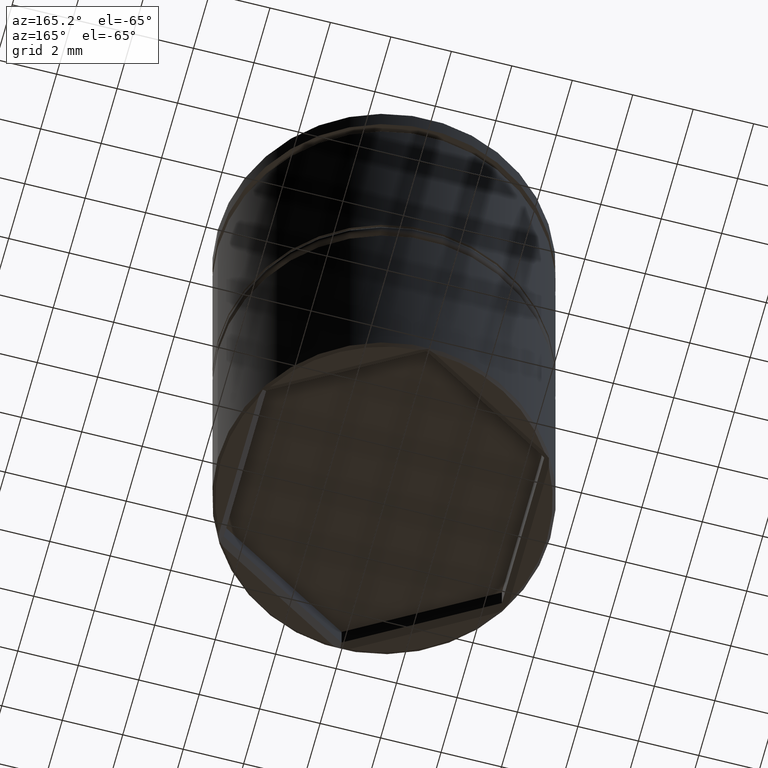
[diagram: clean part render]
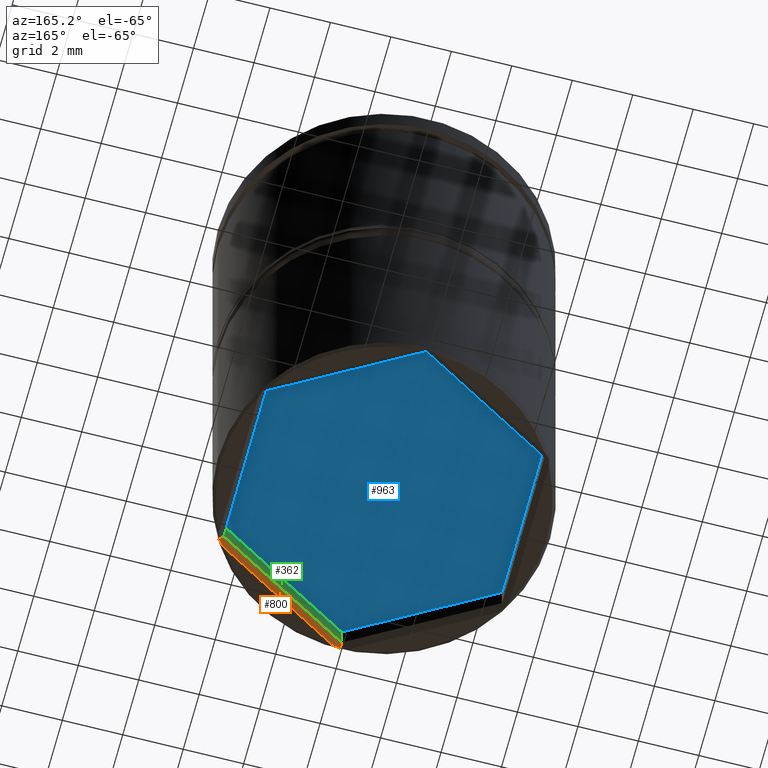
[diagram: same view with three faces highlighted in distinct colors, each labeled with its STEP entity id]
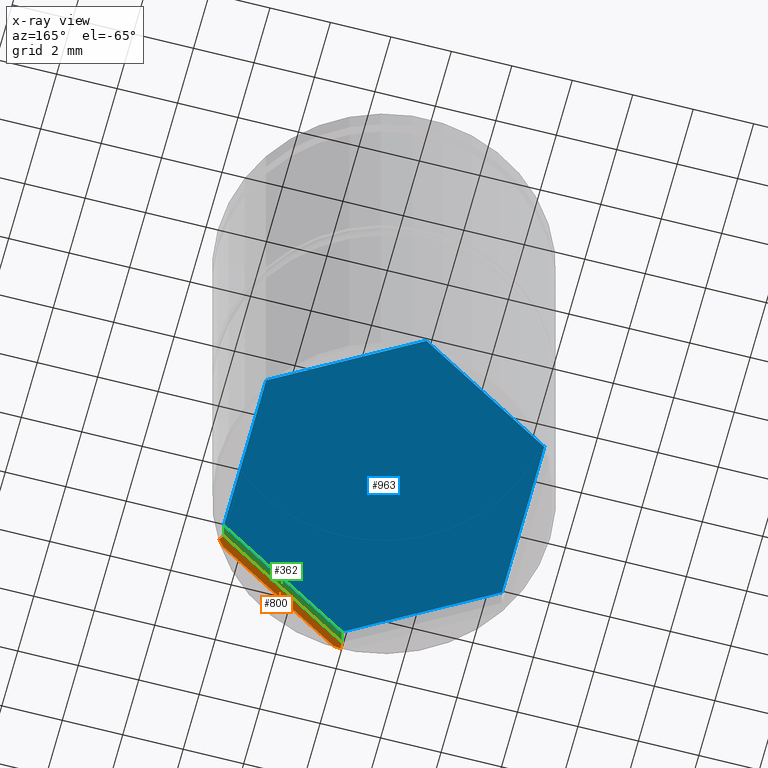
[diagram: x-ray of the same camera — body ghosted, the three highlighted faces saturated]
A machine part, auxiliary view with three faces highlighted in distinct colors.
The next image is the same camera in x-ray (body ghosted, the three faces saturated) — at least one of them is partly hidden behind the body in this view.
Their STEP definitions:

[orange] entity #800 — the highlighted planar face has unit normal (-0.3536, 0.6124, -0.7071).
#8 = ORIENTED_EDGE ( 'NONE', *, *, #845, .F. ) ;
#11 = DIRECTION ( 'NONE',  ( 0.8660254037844385966, 0.4999999999999999445, 0.000000000000000000 ) ) ;
#32 = CARTESIAN_POINT ( 'NONE',  ( 4.670951587135925287, -2.795966650066627590, -17.45685394065973739 ) ) ;
#44 = VERTEX_POINT ( 'NONE', #496 ) ;
#59 = VECTOR ( 'NONE', #1199, 1000.000000000000114 ) ;
#77 = DIRECTION ( 'NONE',  ( 1.792096372221770271E-15, 0.7559289460184548393, 0.6546536707079767536 ) ) ;
#91 = LINE ( 'NONE', #1275, #1111 ) ;
#99 = EDGE_CURVE ( 'NONE', #1200, #683, #626, .T. ) ;
#118 = CARTESIAN_POINT ( 'NONE',  ( 4.600000000000003197, -2.655811238272280050, -17.30000000000000426 ) ) ;
#124 = CARTESIAN_POINT ( 'NONE',  ( 4.542428528562859391, -2.919990250480007266, -17.50000000000000000 ) ) ;
#132 = CARTESIAN_POINT ( 'NONE',  ( 3.285714285714289584, -1.897008027337344638, -15.98571428571429109 ) ) ;
#231 = ORIENTED_EDGE ( 'NONE', *, *, #784, .F. ) ;
#235 = VERTEX_POINT ( 'NONE', #124 ) ;
#261 = CARTESIAN_POINT ( 'NONE',  ( 4.733836474405098471, -2.733081762797452630, -17.43383647440510131 ) ) ;
#298 = B_SPLINE_CURVE_WITH_KNOTS ( 'NONE', 3,
 ( #994, #788, #32, #261 ),
 .UNSPECIFIED., .F., .F.,
 ( 4, 4 ),
 ( 0.000000000000000000, 0.0002755891808806588332 ),
 .UNSPECIFIED. ) ;
#367 = ORIENTED_EDGE ( 'NONE', *, *, #791, .T. ) ;
#393 = CARTESIAN_POINT ( 'NONE',  ( -8.646952822150503169E-16, -5.311622476544560989, -17.30000000000000426 ) ) ;
#446 = DIRECTION ( 'NONE',  ( 0.6546536707079771977, -0.3779644730092269755, -0.6546536707079770867 ) ) ;
#459 = DIRECTION ( 'NONE',  ( -0.3535533905932737864, 0.6123724356957945814, -0.7071067811865474617 ) ) ;
#466 = CARTESIAN_POINT ( 'NONE',  ( 4.600000000000003197, -2.655811238272280050, -17.30000000000000426 ) ) ;
#473 = ORIENTED_EDGE ( 'NONE', *, *, #554, .F. ) ;
#496 = CARTESIAN_POINT ( 'NONE',  ( 4.733836474405098471, -2.733081762797452630, -17.43383647440510131 ) ) ;
#515 = CARTESIAN_POINT ( 'NONE',  ( 4.700000000000002842, -2.829016319029166393, -17.50000000000000000 ) ) ;
#554 = EDGE_CURVE ( 'NONE', #590, #235, #811, .T. ) ;
#570 = LINE ( 'NONE', #132, #749 ) ;
#590 = VERTEX_POINT ( 'NONE', #625 ) ;
#625 = CARTESIAN_POINT ( 'NONE',  ( 0.2575714714371426517, -5.393853625850607791, -17.50000000000000000 ) ) ;
#626 = LINE ( 'NONE', #1080, #59 ) ;
#651 = EDGE_CURVE ( 'NONE', #974, #683, #91, .T. ) ;
#662 = FACE_OUTER_BOUND ( 'NONE', #1233, .T. ) ;
#683 = VERTEX_POINT ( 'NONE', #393 ) ;
#749 = VECTOR ( 'NONE', #446, 1000.000000000000114 ) ;
#784 = EDGE_CURVE ( 'NONE', #974, #590, #1366, .T. ) ;
#788 = CARTESIAN_POINT ( 'NONE',  ( 4.607143312884230291, -2.858292033175949598, -17.47892516860715872 ) ) ;
#791 = EDGE_CURVE ( 'NONE', #1200, #44, #570, .T. ) ;
#796 = AXIS2_PLACEMENT_3D ( 'NONE', #118, #459, #11 ) ;
#800 = ADVANCED_FACE ( 'NONE', ( #662 ), #1308, .T. ) ;
#811 = LINE ( 'NONE', #515, #1067 ) ;
#818 = ORIENTED_EDGE ( 'NONE', *, *, #651, .T. ) ;
#845 = EDGE_CURVE ( 'NONE', #235, #44, #298, .T. ) ;
#912 = ORIENTED_EDGE ( 'NONE', *, *, #99, .F. ) ;
#940 = DIRECTION ( 'NONE',  ( 0.8660254037844385966, 0.4999999999999999445, 0.000000000000000000 ) ) ;
#974 = VERTEX_POINT ( 'NONE', #1024 ) ;
#994 = CARTESIAN_POINT ( 'NONE',  ( 4.542428528562859391, -2.919990250480007266, -17.50000000000000000 ) ) ;
#1024 = CARTESIAN_POINT ( 'NONE',  ( -1.204079547557657958E-15, -5.466163525594906147, -17.43383647440510131 ) ) ;
#1067 = VECTOR ( 'NONE', #940, 1000.000000000000114 ) ;
#1079 = CARTESIAN_POINT ( 'NONE',  ( 0.2575714714371426517, -5.393853625850607791, -17.50000000000000000 ) ) ;
#1080 = CARTESIAN_POINT ( 'NONE',  ( -9.334475960612078863E-16, -5.311622476544560989, -17.30000000000000426 ) ) ;
#1111 = VECTOR ( 'NONE', #77, 1000.000000000000114 ) ;
#1198 = CARTESIAN_POINT ( 'NONE',  ( 0.1717818557229302545, -5.419049164421316789, -17.47892516860715872 ) ) ;
#1199 = DIRECTION ( 'NONE',  ( -0.8660254037844385966, -0.4999999999999999445, 0.000000000000000000 ) ) ;
#1200 = VERTEX_POINT ( 'NONE', #466 ) ;
#1222 = CARTESIAN_POINT ( 'NONE',  ( -1.204079547557657958E-15, -5.466163525594906147, -17.43383647440510131 ) ) ;
#1233 = EDGE_LOOP ( 'NONE', ( #8, #473, #231, #818, #912, #367 ) ) ;
#1275 = CARTESIAN_POINT ( 'NONE',  ( -8.646952822150503169E-16, -5.311622476544560989, -17.30000000000000426 ) ) ;
#1308 = PLANE ( 'NONE',  #796 ) ;
#1321 = CARTESIAN_POINT ( 'NONE',  ( 0.08590235352381191125, -5.443146059340267406, -17.45685394065973739 ) ) ;
#1366 = B_SPLINE_CURVE_WITH_KNOTS ( 'NONE', 3,
 ( #1222, #1321, #1198, #1079 ),
 .UNSPECIFIED., .F., .F.,
 ( 4, 4 ),
 ( 1.891262555392043906E-19, 0.0002755891808806599174 ),
 .UNSPECIFIED. ) ;

[blue] entity #963 — the highlighted planar face has unit normal (0, 0, -1).
#2 = LINE ( 'NONE', #964, #820 ) ;
#62 = CARTESIAN_POINT ( 'NONE',  ( 0.000000000000000000, 5.311622476544559213, -16.50000000000000000 ) ) ;
#72 = EDGE_CURVE ( 'NONE', #408, #892, #1252, .T. ) ;
#103 = DIRECTION ( 'NONE',  ( 0.8660254037844385966, -0.4999999999999999445, 0.000000000000000000 ) ) ;
#126 = EDGE_CURVE ( 'NONE', #753, #1094, #767, .T. ) ;
#127 = VERTEX_POINT ( 'NONE', #430 ) ;
#156 = EDGE_CURVE ( 'NONE', #127, #870, #2, .T. ) ;
#171 = VECTOR ( 'NONE', #642, 1000.000000000000227 ) ;
#174 = DIRECTION ( 'NONE',  ( -1.000000000000000000, 0.000000000000000000, -0.000000000000000000 ) ) ;
#207 = EDGE_CURVE ( 'NONE', #892, #127, #319, .T. ) ;
#220 = CARTESIAN_POINT ( 'NONE',  ( -8.646952822150503169E-16, -5.311622476544560989, -16.50000000000000000 ) ) ;
#283 = VECTOR ( 'NONE', #103, 1000.000000000000114 ) ;
#286 = PLANE ( 'NONE',  #1069 ) ;
#319 = LINE ( 'NONE', #737, #283 ) ;
#358 = ORIENTED_EDGE ( 'NONE', *, *, #126, .T. ) ;
#400 = DIRECTION ( 'NONE',  ( 0.8660254037844387076, 0.4999999999999998890, 0.000000000000000000 ) ) ;
#408 = VERTEX_POINT ( 'NONE', #1211 ) ;
#430 = CARTESIAN_POINT ( 'NONE',  ( 4.600000000000003197, 2.655811238272278718, -16.50000000000000000 ) ) ;
#523 = LINE ( 'NONE', #613, #748 ) ;
#556 = ORIENTED_EDGE ( 'NONE', *, *, #156, .T. ) ;
#608 = EDGE_CURVE ( 'NONE', #870, #753, #523, .T. ) ;
#613 = CARTESIAN_POINT ( 'NONE',  ( 4.600000000000003197, -2.655811238272280050, -16.50000000000000000 ) ) ;
#642 = DIRECTION ( 'NONE',  ( -0.8660254037844384856, 0.5000000000000002220, 0.000000000000000000 ) ) ;
#661 = ORIENTED_EDGE ( 'NONE', *, *, #608, .T. ) ;
#688 = CARTESIAN_POINT ( 'NONE',  ( 0.000000000000000000, 0.000000000000000000, -16.50000000000000000 ) ) ;
#699 = DIRECTION ( 'NONE',  ( 0.000000000000000000, 0.000000000000000000, -1.000000000000000000 ) ) ;
#726 = EDGE_LOOP ( 'NONE', ( #944, #1337, #556, #661, #358, #1244 ) ) ;
#737 = CARTESIAN_POINT ( 'NONE',  ( 0.000000000000000000, 5.311622476544559213, -16.50000000000000000 ) ) ;
#748 = VECTOR ( 'NONE', #826, 1000.000000000000114 ) ;
#753 = VERTEX_POINT ( 'NONE', #1160 ) ;
#767 = LINE ( 'NONE', #220, #171 ) ;
#799 = VECTOR ( 'NONE', #1154, 1000.000000000000000 ) ;
#820 = VECTOR ( 'NONE', #1184, 1000.000000000000000 ) ;
#826 = DIRECTION ( 'NONE',  ( -0.8660254037844385966, -0.4999999999999999445, 0.000000000000000000 ) ) ;
#829 = CARTESIAN_POINT ( 'NONE',  ( -4.600000000000003197, -2.655811238272279606, -16.50000000000000000 ) ) ;
#870 = VERTEX_POINT ( 'NONE', #1332 ) ;
#892 = VERTEX_POINT ( 'NONE', #62 ) ;
#944 = ORIENTED_EDGE ( 'NONE', *, *, #72, .T. ) ;
#963 = ADVANCED_FACE ( 'NONE', ( #1236 ), #286, .T. ) ;
#964 = CARTESIAN_POINT ( 'NONE',  ( 4.600000000000003197, 2.655811238272278718, -16.50000000000000000 ) ) ;
#1069 = AXIS2_PLACEMENT_3D ( 'NONE', #688, #699, #174 ) ;
#1094 = VERTEX_POINT ( 'NONE', #1162 ) ;
#1120 = EDGE_CURVE ( 'NONE', #1094, #408, #1369, .T. ) ;
#1136 = CARTESIAN_POINT ( 'NONE',  ( -4.600000000000003197, 2.655811238272279606, -16.50000000000000000 ) ) ;
#1154 = DIRECTION ( 'NONE',  ( 0.000000000000000000, 1.000000000000000000, 0.000000000000000000 ) ) ;
#1160 = CARTESIAN_POINT ( 'NONE',  ( -8.646952822150503169E-16, -5.311622476544560989, -16.50000000000000000 ) ) ;
#1162 = CARTESIAN_POINT ( 'NONE',  ( -4.600000000000003197, -2.655811238272279606, -16.50000000000000000 ) ) ;
#1184 = DIRECTION ( 'NONE',  ( 0.000000000000000000, -1.000000000000000000, 0.000000000000000000 ) ) ;
#1211 = CARTESIAN_POINT ( 'NONE',  ( -4.600000000000003197, 2.655811238272279606, -16.50000000000000000 ) ) ;
#1236 = FACE_OUTER_BOUND ( 'NONE', #726, .T. ) ;
#1244 = ORIENTED_EDGE ( 'NONE', *, *, #1120, .T. ) ;
#1252 = LINE ( 'NONE', #1136, #1377 ) ;
#1332 = CARTESIAN_POINT ( 'NONE',  ( 4.600000000000003197, -2.655811238272280050, -16.50000000000000000 ) ) ;
#1337 = ORIENTED_EDGE ( 'NONE', *, *, #207, .T. ) ;
#1369 = LINE ( 'NONE', #829, #799 ) ;
#1377 = VECTOR ( 'NONE', #400, 1000.000000000000114 ) ;

[green] entity #362 — the highlighted planar face has unit normal (0.5, -0.866, 0).
#38 = VECTOR ( 'NONE', #1352, 1000.000000000000000 ) ;
#59 = VECTOR ( 'NONE', #1199, 1000.000000000000114 ) ;
#99 = EDGE_CURVE ( 'NONE', #1200, #683, #626, .T. ) ;
#153 = VECTOR ( 'NONE', #1188, 1000.000000000000000 ) ;
#321 = ORIENTED_EDGE ( 'NONE', *, *, #608, .F. ) ;
#330 = LINE ( 'NONE', #747, #153 ) ;
#362 = ADVANCED_FACE ( 'NONE', ( #585 ), #1119, .F. ) ;
#371 = DIRECTION ( 'NONE',  ( 0.5000000000000000000, -0.8660254037844387076, 0.000000000000000000 ) ) ;
#393 = CARTESIAN_POINT ( 'NONE',  ( -8.646952822150503169E-16, -5.311622476544560989, -17.30000000000000426 ) ) ;
#432 = ORIENTED_EDGE ( 'NONE', *, *, #993, .T. ) ;
#466 = CARTESIAN_POINT ( 'NONE',  ( 4.600000000000003197, -2.655811238272280050, -17.30000000000000426 ) ) ;
#523 = LINE ( 'NONE', #613, #748 ) ;
#585 = FACE_OUTER_BOUND ( 'NONE', #1323, .T. ) ;
#588 = CARTESIAN_POINT ( 'NONE',  ( 4.600000000000003197, -2.655811238272280050, -16.50000000000000000 ) ) ;
#608 = EDGE_CURVE ( 'NONE', #870, #753, #523, .T. ) ;
#613 = CARTESIAN_POINT ( 'NONE',  ( 4.600000000000003197, -2.655811238272280050, -16.50000000000000000 ) ) ;
#626 = LINE ( 'NONE', #1080, #59 ) ;
#683 = VERTEX_POINT ( 'NONE', #393 ) ;
#707 = LINE ( 'NONE', #588, #38 ) ;
#747 = CARTESIAN_POINT ( 'NONE',  ( -8.646952822150503169E-16, -5.311622476544560989, -16.50000000000000000 ) ) ;
#748 = VECTOR ( 'NONE', #826, 1000.000000000000114 ) ;
#753 = VERTEX_POINT ( 'NONE', #1160 ) ;
#789 = DIRECTION ( 'NONE',  ( 0.8660254037844385966, 0.4999999999999999445, 0.000000000000000000 ) ) ;
#826 = DIRECTION ( 'NONE',  ( -0.8660254037844385966, -0.4999999999999999445, 0.000000000000000000 ) ) ;
#853 = ORIENTED_EDGE ( 'NONE', *, *, #99, .T. ) ;
#868 = ORIENTED_EDGE ( 'NONE', *, *, #1227, .F. ) ;
#870 = VERTEX_POINT ( 'NONE', #1332 ) ;
#993 = EDGE_CURVE ( 'NONE', #870, #1200, #707, .T. ) ;
#1020 = AXIS2_PLACEMENT_3D ( 'NONE', #1318, #371, #789 ) ;
#1080 = CARTESIAN_POINT ( 'NONE',  ( -9.334475960612078863E-16, -5.311622476544560989, -17.30000000000000426 ) ) ;
#1119 = PLANE ( 'NONE',  #1020 ) ;
#1160 = CARTESIAN_POINT ( 'NONE',  ( -8.646952822150503169E-16, -5.311622476544560989, -16.50000000000000000 ) ) ;
#1188 = DIRECTION ( 'NONE',  ( -0.000000000000000000, -0.000000000000000000, -1.000000000000000000 ) ) ;
#1199 = DIRECTION ( 'NONE',  ( -0.8660254037844385966, -0.4999999999999999445, 0.000000000000000000 ) ) ;
#1200 = VERTEX_POINT ( 'NONE', #466 ) ;
#1227 = EDGE_CURVE ( 'NONE', #753, #683, #330, .T. ) ;
#1318 = CARTESIAN_POINT ( 'NONE',  ( 4.600000000000003197, -2.655811238272280050, -16.50000000000000000 ) ) ;
#1323 = EDGE_LOOP ( 'NONE', ( #432, #853, #868, #321 ) ) ;
#1332 = CARTESIAN_POINT ( 'NONE',  ( 4.600000000000003197, -2.655811238272280050, -16.50000000000000000 ) ) ;
#1352 = DIRECTION ( 'NONE',  ( -0.000000000000000000, -0.000000000000000000, -1.000000000000000000 ) ) ;